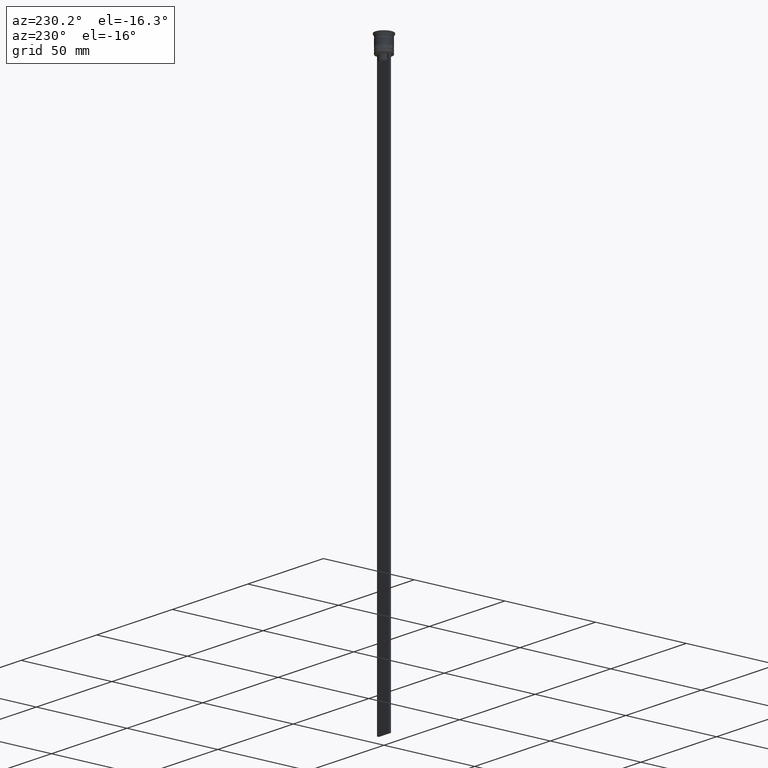
[diagram: clean part render]
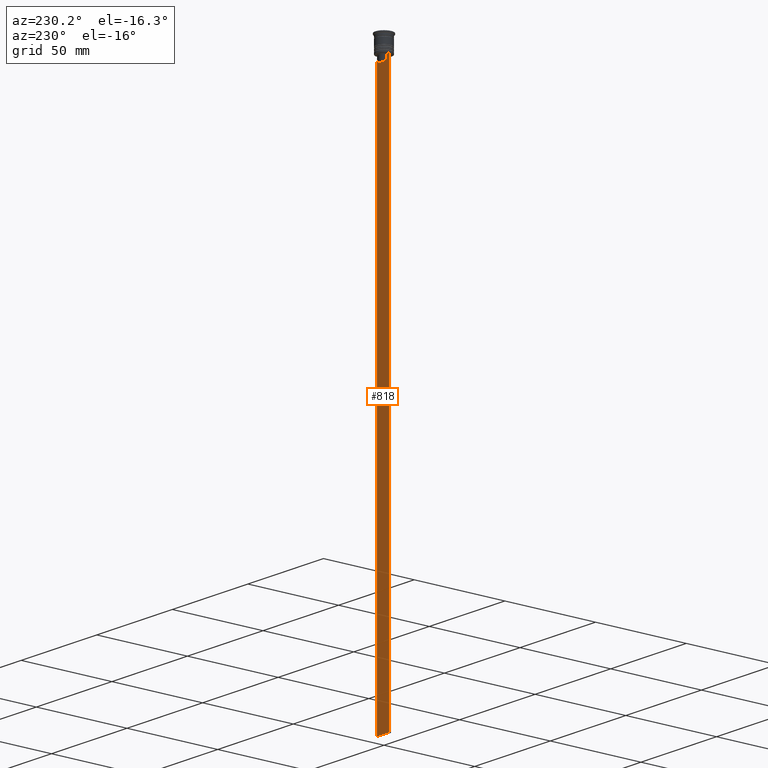
[diagram: same view with one face highlighted and labeled with its STEP entity id]
A machine part, auxiliary view. The second image highlights one B-rep face of the part: STEP entity #818.
In plain terms, the highlighted planar face has unit normal (0, -1, -0).
Its self-contained STEP definition (entity closure, byte-faithful):
#9 = ORIENTED_EDGE ( 'NONE', *, *, #1785, .T. ) ;
#75 = CARTESIAN_POINT ( 'NONE',  ( -2.941047749529105193, 0.4999999999999995559, -9.666873766989334982 ) ) ;
#124 = CARTESIAN_POINT ( 'NONE',  ( 2.602402735934617350, 0.4999999999999995559, -10.00000000000000178 ) ) ;
#135 = CARTESIAN_POINT ( 'NONE',  ( 4.000000000000005329, 0.4999999999999995559, -9.500000000000000000 ) ) ;
#142 = VECTOR ( 'NONE', #1834, 1000.000000000000000 ) ;
#162 = VERTEX_POINT ( 'NONE', #124 ) ;
#168 = LINE ( 'NONE', #538, #2258 ) ;
#194 = CARTESIAN_POINT ( 'NONE',  ( -2.602402735934617350, 0.4999999999999995559, -12.50000000000000000 ) ) ;
#203 = DIRECTION ( 'NONE',  ( 0.000000000000000000, 0.000000000000000000, -1.000000000000000000 ) ) ;
#209 = CARTESIAN_POINT ( 'NONE',  ( -3.999999999999994671, 0.4999999999999995559, -309.5000000000000000 ) ) ;
#242 = CARTESIAN_POINT ( 'NONE',  ( -2.771866350855961780, 0.4999999999999995559, -9.833580160334840059 ) ) ;
#308 = CARTESIAN_POINT ( 'NONE',  ( 2.602402735934617350, 0.4999999999999995559, 0.000000000000000000 ) ) ;
#388 = CARTESIAN_POINT ( 'NONE',  ( 2.602402735934617350, 0.4999999999999995559, -12.50000000000000000 ) ) ;
#392 = CARTESIAN_POINT ( 'NONE',  ( 4.000000000000005329, 0.4999999999999995559, -309.5000000000000000 ) ) ;
#426 = VERTEX_POINT ( 'NONE', #209 ) ;
#538 = CARTESIAN_POINT ( 'NONE',  ( 4.000000000000005329, 0.4999999999999995559, -309.5000000000000000 ) ) ;
#554 = B_SPLINE_CURVE_WITH_KNOTS ( 'NONE', 3,
 ( #2026, #1299, #575, #1475 ),
 .UNSPECIFIED., .F., .F.,
 ( 4, 4 ),
 ( 0.01295151922336847637, 0.01367164596165162602 ),
 .UNSPECIFIED. ) ;
#567 = CARTESIAN_POINT ( 'NONE',  ( 0.000000000000000000, 0.4999999999999995559, -12.50000000000000000 ) ) ;
#575 = CARTESIAN_POINT ( 'NONE',  ( 2.941045828809989438, 0.4999999999999995559, -9.666875663357577864 ) ) ;
#577 = LINE ( 'NONE', #600, #651 ) ;
#599 = ORIENTED_EDGE ( 'NONE', *, *, #726, .F. ) ;
#600 = CARTESIAN_POINT ( 'NONE',  ( -2.602402735934617350, 0.4999999999999995559, 0.000000000000000000 ) ) ;
#622 = EDGE_LOOP ( 'NONE', ( #1908, #1049, #1296, #1872, #630, #765, #1257, #9, #1589, #599 ) ) ;
#630 = ORIENTED_EDGE ( 'NONE', *, *, #1391, .T. ) ;
#651 = VECTOR ( 'NONE', #1173, 1000.000000000000000 ) ;
#662 = EDGE_CURVE ( 'NONE', #162, #1424, #554, .T. ) ;
#670 = VERTEX_POINT ( 'NONE', #194 ) ;
#678 = DIRECTION ( 'NONE',  ( -0.000000000000000000, -0.000000000000000000, 1.000000000000000000 ) ) ;
#704 = VERTEX_POINT ( 'NONE', #740 ) ;
#705 = LINE ( 'NONE', #1442, #142 ) ;
#726 = EDGE_CURVE ( 'NONE', #704, #426, #1676, .T. ) ;
#740 = CARTESIAN_POINT ( 'NONE',  ( -3.999999999999994671, 0.4999999999999997780, -9.500000000000000000 ) ) ;
#758 = VECTOR ( 'NONE', #1403, 1000.000000000000000 ) ;
#765 = ORIENTED_EDGE ( 'NONE', *, *, #662, .T. ) ;
#804 = VECTOR ( 'NONE', #1043, 1000.000000000000000 ) ;
#818 = ADVANCED_FACE ( 'NONE', ( #2051 ), #1350, .F. ) ;
#888 = CARTESIAN_POINT ( 'NONE',  ( -2.602402735934617350, 0.4999999999999995559, -10.00000000000000178 ) ) ;
#1008 = CARTESIAN_POINT ( 'NONE',  ( 4.000000000000005329, 0.4999999999999995559, -1.437742251701450202 ) ) ;
#1012 = CARTESIAN_POINT ( 'NONE',  ( 4.000000000000005329, 0.4999999999999995559, -1.437742251701450202 ) ) ;
#1043 = DIRECTION ( 'NONE',  ( 0.000000000000000000, 0.000000000000000000, -1.000000000000000000 ) ) ;
#1049 = ORIENTED_EDGE ( 'NONE', *, *, #2281, .T. ) ;
#1096 = EDGE_CURVE ( 'NONE', #1298, #426, #168, .T. ) ;
#1173 = DIRECTION ( 'NONE',  ( 0.000000000000000000, 0.000000000000000000, -1.000000000000000000 ) ) ;
#1193 = EDGE_CURVE ( 'NONE', #704, #1641, #705, .T. ) ;
#1210 = LINE ( 'NONE', #308, #1680 ) ;
#1239 = LINE ( 'NONE', #135, #758 ) ;
#1257 = ORIENTED_EDGE ( 'NONE', *, *, #1428, .T. ) ;
#1267 = VECTOR ( 'NONE', #1851, 1000.000000000000000 ) ;
#1296 = ORIENTED_EDGE ( 'NONE', *, *, #2181, .T. ) ;
#1298 = VERTEX_POINT ( 'NONE', #392 ) ;
#1299 = CARTESIAN_POINT ( 'NONE',  ( 2.771864055700302476, 0.4999999999999995559, -9.833582414266677674 ) ) ;
#1350 = PLANE ( 'NONE',  #2102 ) ;
#1361 = CARTESIAN_POINT ( 'NONE',  ( -2.602402735934617350, 0.4999999999999995559, -10.00000000000000178 ) ) ;
#1391 = EDGE_CURVE ( 'NONE', #2120, #162, #1210, .T. ) ;
#1403 = DIRECTION ( 'NONE',  ( 1.000000000000000000, 0.000000000000000000, 0.000000000000000000 ) ) ;
#1424 = VERTEX_POINT ( 'NONE', #2321 ) ;
#1428 = EDGE_CURVE ( 'NONE', #1424, #2249, #1239, .T. ) ;
#1442 = CARTESIAN_POINT ( 'NONE',  ( 4.000000000000005329, 0.4999999999999995559, -9.500000000000000000 ) ) ;
#1475 = CARTESIAN_POINT ( 'NONE',  ( 3.110064308016796897, 0.4999999999999995559, -9.500000000000000000 ) ) ;
#1538 = CARTESIAN_POINT ( 'NONE',  ( 4.000000000000005329, 0.4999999999999995559, -9.500000000000000000 ) ) ;
#1542 = LINE ( 'NONE', #567, #1267 ) ;
#1589 = ORIENTED_EDGE ( 'NONE', *, *, #1096, .T. ) ;
#1603 = VECTOR ( 'NONE', #203, 1000.000000000000000 ) ;
#1641 = VERTEX_POINT ( 'NONE', #1669 ) ;
#1669 = CARTESIAN_POINT ( 'NONE',  ( -3.110064308016796897, 0.4999999999999995559, -9.500000000000000000 ) ) ;
#1676 = LINE ( 'NONE', #2209, #1603 ) ;
#1680 = VECTOR ( 'NONE', #678, 1000.000000000000000 ) ;
#1715 = DIRECTION ( 'NONE',  ( 0.000000000000000000, -1.000000000000000000, -0.000000000000000000 ) ) ;
#1767 = EDGE_CURVE ( 'NONE', #670, #2120, #1542, .T. ) ;
#1778 = LINE ( 'NONE', #1008, #804 ) ;
#1785 = EDGE_CURVE ( 'NONE', #2249, #1298, #1778, .T. ) ;
#1834 = DIRECTION ( 'NONE',  ( 1.000000000000000000, 0.000000000000000000, 0.000000000000000000 ) ) ;
#1851 = DIRECTION ( 'NONE',  ( 1.000000000000000000, 0.000000000000000000, 0.000000000000000000 ) ) ;
#1872 = ORIENTED_EDGE ( 'NONE', *, *, #1767, .T. ) ;
#1908 = ORIENTED_EDGE ( 'NONE', *, *, #1193, .T. ) ;
#1913 = B_SPLINE_CURVE_WITH_KNOTS ( 'NONE', 3,
 ( #2301, #75, #242, #1361 ),
 .UNSPECIFIED., .F., .F.,
 ( 4, 4 ),
 ( 0.005378271293598279809, 0.006090816219555997280 ),
 .UNSPECIFIED. ) ;
#2026 = CARTESIAN_POINT ( 'NONE',  ( 2.602402735934617350, 0.4999999999999995559, -10.00000000000000178 ) ) ;
#2051 = FACE_OUTER_BOUND ( 'NONE', #622, .T. ) ;
#2062 = VERTEX_POINT ( 'NONE', #888 ) ;
#2089 = DIRECTION ( 'NONE',  ( 0.000000000000000000, 0.000000000000000000, -1.000000000000000000 ) ) ;
#2102 = AXIS2_PLACEMENT_3D ( 'NONE', #1012, #1715, #2089 ) ;
#2120 = VERTEX_POINT ( 'NONE', #388 ) ;
#2171 = DIRECTION ( 'NONE',  ( -1.000000000000000000, 0.000000000000000000, 0.000000000000000000 ) ) ;
#2181 = EDGE_CURVE ( 'NONE', #2062, #670, #577, .T. ) ;
#2209 = CARTESIAN_POINT ( 'NONE',  ( -3.999999999999994671, 0.4999999999999995559, -1.437742251701450202 ) ) ;
#2249 = VERTEX_POINT ( 'NONE', #1538 ) ;
#2258 = VECTOR ( 'NONE', #2171, 1000.000000000000000 ) ;
#2281 = EDGE_CURVE ( 'NONE', #1641, #2062, #1913, .T. ) ;
#2301 = CARTESIAN_POINT ( 'NONE',  ( -3.110064308016796897, 0.4999999999999995559, -9.500000000000000000 ) ) ;
#2321 = CARTESIAN_POINT ( 'NONE',  ( 3.110064308016796897, 0.4999999999999995559, -9.500000000000000000 ) ) ;